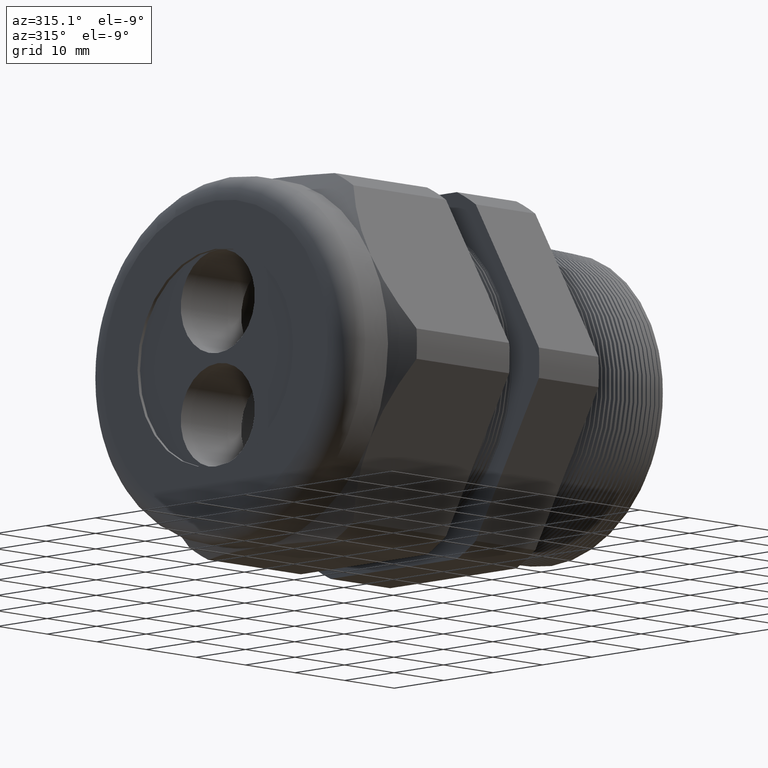
[diagram: clean part render]
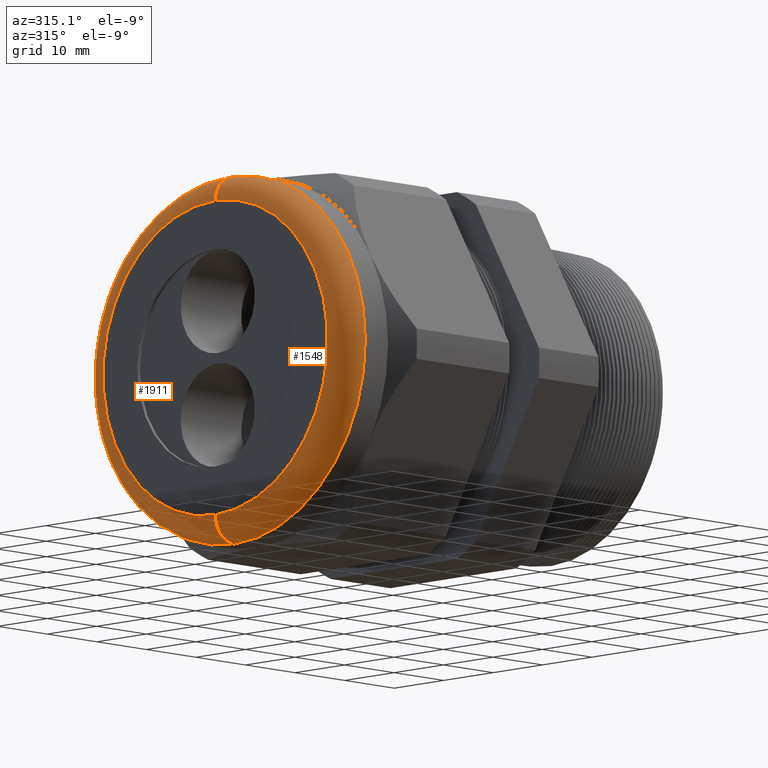
[diagram: same view with one multi-face feature highlighted, each face labeled with its STEP entity id]
A machine part, auxiliary view. The highlighted faces form ONE feature: a constant-radius fillet chain: 2 tangent blend faces with common blend radius 3.81 mm. The faces share edges in the B-rep.
Their STEP definitions:
[1] entity #1548 (Torus):
#338 = EDGE_CURVE ( 'NONE', #1907, #1915, #2332, .T. ) ;
#1506 = ORIENTED_EDGE ( 'NONE', *, *, #1923, .F. ) ;
#1524 = EDGE_LOOP ( 'NONE', ( #1506, #1680, #1678, #1674 ) ) ;
#1548 = ADVANCED_FACE ( 'NONE', ( #4101 ), #4100, .T. ) ;
#1674 = ORIENTED_EDGE ( 'NONE', *, *, #338, .F. ) ;
#1678 = ORIENTED_EDGE ( 'NONE', *, *, #1938, .T. ) ;
#1680 = ORIENTED_EDGE ( 'NONE', *, *, #1707, .F. ) ;
#1707 = EDGE_CURVE ( 'NONE', #1926, #1909, #4323, .T. ) ;
#1907 = VERTEX_POINT ( 'NONE', #4753 ) ;
#1909 = VERTEX_POINT ( 'NONE', #4752 ) ;
#1915 = VERTEX_POINT ( 'NONE', #4739 ) ;
#1923 = EDGE_CURVE ( 'NONE', #1909, #1907, #4781, .T. ) ;
#1926 = VERTEX_POINT ( 'NONE', #4770 ) ;
#1938 = EDGE_CURVE ( 'NONE', #1926, #1915, #4812, .T. ) ;
#2328 = DIRECTION ( 'NONE',  ( 0.0000000000000000000, 0.0000000000000000000, 1.000000000000000000 ) ) ;
#2329 = DIRECTION ( 'NONE',  ( -1.000000000000000000, 0.0000000000000000000, 0.0000000000000000000 ) ) ;
#2330 = CARTESIAN_POINT ( 'NONE',  ( -2.200000000000000200, 0.0000000000000000000, 0.0000000000000000000 ) ) ;
#2331 = AXIS2_PLACEMENT_3D ( 'NONE', #2330, #2329, #2328 ) ;
#2332 = CIRCLE ( 'NONE', #2331, 0.8949999999999999100 ) ;
#4097 = DIRECTION ( 'NONE',  ( 0.0000000000000000000, 0.0000000000000000000, 1.000000000000000000 ) ) ;
#4098 = DIRECTION ( 'NONE',  ( -1.000000000000000000, 0.0000000000000000000, 0.0000000000000000000 ) ) ;
#4099 = AXIS2_PLACEMENT_3D ( 'NONE', #4105, #4098, #4097 ) ;
#4100 = TOROIDAL_SURFACE ( 'NONE', #4099, 0.8949999999999999100, 0.1499999999999999900 ) ;
#4101 = FACE_OUTER_BOUND ( 'NONE', #1524, .T. ) ;
#4105 = CARTESIAN_POINT ( 'NONE',  ( -2.049999999999999800, 0.0000000000000000000, 0.0000000000000000000 ) ) ;
#4319 = DIRECTION ( 'NONE',  ( 0.0000000000000000000, 0.0000000000000000000, 1.000000000000000000 ) ) ;
#4320 = DIRECTION ( 'NONE',  ( 1.000000000000000000, 0.0000000000000000000, 0.0000000000000000000 ) ) ;
#4321 = CARTESIAN_POINT ( 'NONE',  ( -2.049999999999999800, 0.0000000000000000000, 0.0000000000000000000 ) ) ;
#4322 = AXIS2_PLACEMENT_3D ( 'NONE', #4321, #4320, #4319 ) ;
#4323 = CIRCLE ( 'NONE', #4322, 1.044999999999999900 ) ;
#4739 = CARTESIAN_POINT ( 'NONE',  ( -2.200000000000000200, 0.0000000000000000000, 0.8949999999999999100 ) ) ;
#4752 = CARTESIAN_POINT ( 'NONE',  ( -2.049999999999999800, 0.0000000000000000000, -1.044999999999999900 ) ) ;
#4753 = CARTESIAN_POINT ( 'NONE',  ( -2.200000000000000200, 1.187907395172932400E-016, -0.8949999999999999100 ) ) ;
#4770 = CARTESIAN_POINT ( 'NONE',  ( -2.049999999999999800, 1.279755905108984100E-016, 1.044999999999999900 ) ) ;
#4777 = DIRECTION ( 'NONE',  ( 0.0000000000000000000, -1.224646799147352500E-016, 1.000000000000000000 ) ) ;
#4778 = DIRECTION ( 'NONE',  ( 0.0000000000000000000, 1.000000000000000000, 1.224646799147353200E-016 ) ) ;
#4779 = CARTESIAN_POINT ( 'NONE',  ( -2.049999999999999800, 1.096058885236880900E-016, -0.8949999999999999100 ) ) ;
#4780 = AXIS2_PLACEMENT_3D ( 'NONE', #4779, #4778, #4777 ) ;
#4781 = CIRCLE ( 'NONE', #4780, 0.1500000000000000500 ) ;
#4808 = DIRECTION ( 'NONE',  ( 0.0000000000000000000, 0.0000000000000000000, -1.000000000000000000 ) ) ;
#4809 = DIRECTION ( 'NONE',  ( 0.0000000000000000000, -1.000000000000000000, 0.0000000000000000000 ) ) ;
#4810 = CARTESIAN_POINT ( 'NONE',  ( -2.049999999999999800, 0.0000000000000000000, 0.8949999999999999100 ) ) ;
#4811 = AXIS2_PLACEMENT_3D ( 'NONE', #4810, #4809, #4808 ) ;
#4812 = CIRCLE ( 'NONE', #4811, 0.1500000000000000500 ) ;
[2] entity #1911 (Torus):
#1885 = EDGE_LOOP ( 'NONE', ( #1914, #1921, #1908, #1934 ) ) ;
#1907 = VERTEX_POINT ( 'NONE', #4753 ) ;
#1908 = ORIENTED_EDGE ( 'NONE', *, *, #1919, .F. ) ;
#1909 = VERTEX_POINT ( 'NONE', #4752 ) ;
#1911 = ADVANCED_FACE ( 'NONE', ( #4750 ), #4747, .T. ) ;
#1912 = EDGE_CURVE ( 'NONE', #1909, #1926, #4743, .T. ) ;
#1914 = ORIENTED_EDGE ( 'NONE', *, *, #1912, .F. ) ;
#1915 = VERTEX_POINT ( 'NONE', #4739 ) ;
#1919 = EDGE_CURVE ( 'NONE', #1915, #1907, #4728, .T. ) ;
#1921 = ORIENTED_EDGE ( 'NONE', *, *, #1923, .T. ) ;
#1923 = EDGE_CURVE ( 'NONE', #1909, #1907, #4781, .T. ) ;
#1926 = VERTEX_POINT ( 'NONE', #4770 ) ;
#1934 = ORIENTED_EDGE ( 'NONE', *, *, #1938, .F. ) ;
#1938 = EDGE_CURVE ( 'NONE', #1926, #1915, #4812, .T. ) ;
#4724 = DIRECTION ( 'NONE',  ( 0.0000000000000000000, 0.0000000000000000000, 1.000000000000000000 ) ) ;
#4725 = DIRECTION ( 'NONE',  ( -1.000000000000000000, 0.0000000000000000000, 0.0000000000000000000 ) ) ;
#4726 = CARTESIAN_POINT ( 'NONE',  ( -2.200000000000000200, 0.0000000000000000000, 0.0000000000000000000 ) ) ;
#4727 = AXIS2_PLACEMENT_3D ( 'NONE', #4726, #4725, #4724 ) ;
#4728 = CIRCLE ( 'NONE', #4727, 0.8949999999999999100 ) ;
#4739 = CARTESIAN_POINT ( 'NONE',  ( -2.200000000000000200, 0.0000000000000000000, 0.8949999999999999100 ) ) ;
#4740 = DIRECTION ( 'NONE',  ( 0.0000000000000000000, 0.0000000000000000000, 1.000000000000000000 ) ) ;
#4741 = DIRECTION ( 'NONE',  ( 1.000000000000000000, 0.0000000000000000000, 0.0000000000000000000 ) ) ;
#4742 = AXIS2_PLACEMENT_3D ( 'NONE', #4748, #4741, #4740 ) ;
#4743 = CIRCLE ( 'NONE', #4742, 1.044999999999999900 ) ;
#4744 = DIRECTION ( 'NONE',  ( 0.0000000000000000000, 0.0000000000000000000, 1.000000000000000000 ) ) ;
#4745 = DIRECTION ( 'NONE',  ( -1.000000000000000000, 0.0000000000000000000, 0.0000000000000000000 ) ) ;
#4746 = AXIS2_PLACEMENT_3D ( 'NONE', #4749, #4745, #4744 ) ;
#4747 = TOROIDAL_SURFACE ( 'NONE', #4746, 0.8949999999999999100, 0.1499999999999999900 ) ;
#4748 = CARTESIAN_POINT ( 'NONE',  ( -2.049999999999999800, 0.0000000000000000000, 0.0000000000000000000 ) ) ;
#4749 = CARTESIAN_POINT ( 'NONE',  ( -2.049999999999999800, 0.0000000000000000000, 0.0000000000000000000 ) ) ;
#4750 = FACE_OUTER_BOUND ( 'NONE', #1885, .T. ) ;
#4752 = CARTESIAN_POINT ( 'NONE',  ( -2.049999999999999800, 0.0000000000000000000, -1.044999999999999900 ) ) ;
#4753 = CARTESIAN_POINT ( 'NONE',  ( -2.200000000000000200, 1.187907395172932400E-016, -0.8949999999999999100 ) ) ;
#4770 = CARTESIAN_POINT ( 'NONE',  ( -2.049999999999999800, 1.279755905108984100E-016, 1.044999999999999900 ) ) ;
#4777 = DIRECTION ( 'NONE',  ( 0.0000000000000000000, -1.224646799147352500E-016, 1.000000000000000000 ) ) ;
#4778 = DIRECTION ( 'NONE',  ( 0.0000000000000000000, 1.000000000000000000, 1.224646799147353200E-016 ) ) ;
#4779 = CARTESIAN_POINT ( 'NONE',  ( -2.049999999999999800, 1.096058885236880900E-016, -0.8949999999999999100 ) ) ;
#4780 = AXIS2_PLACEMENT_3D ( 'NONE', #4779, #4778, #4777 ) ;
#4781 = CIRCLE ( 'NONE', #4780, 0.1500000000000000500 ) ;
#4808 = DIRECTION ( 'NONE',  ( 0.0000000000000000000, 0.0000000000000000000, -1.000000000000000000 ) ) ;
#4809 = DIRECTION ( 'NONE',  ( 0.0000000000000000000, -1.000000000000000000, 0.0000000000000000000 ) ) ;
#4810 = CARTESIAN_POINT ( 'NONE',  ( -2.049999999999999800, 0.0000000000000000000, 0.8949999999999999100 ) ) ;
#4811 = AXIS2_PLACEMENT_3D ( 'NONE', #4810, #4809, #4808 ) ;
#4812 = CIRCLE ( 'NONE', #4811, 0.1500000000000000500 ) ;